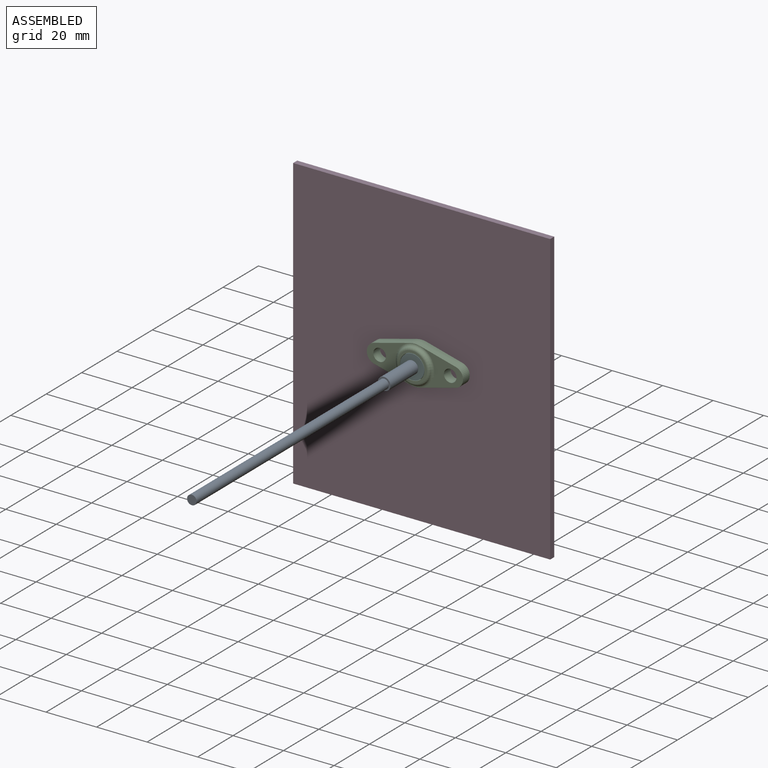
[diagram: assembled view]
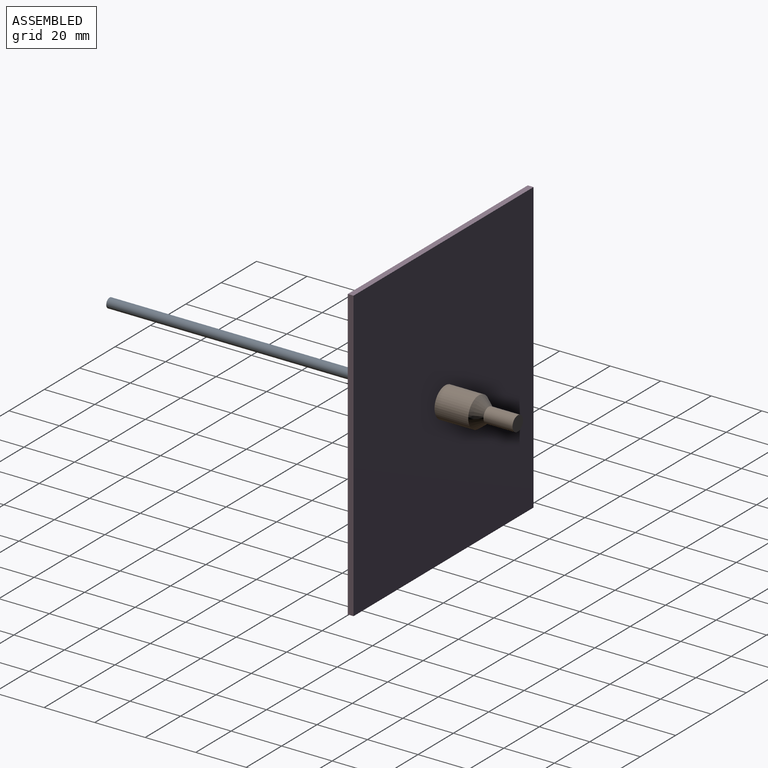
[diagram: assembled view, second angle]
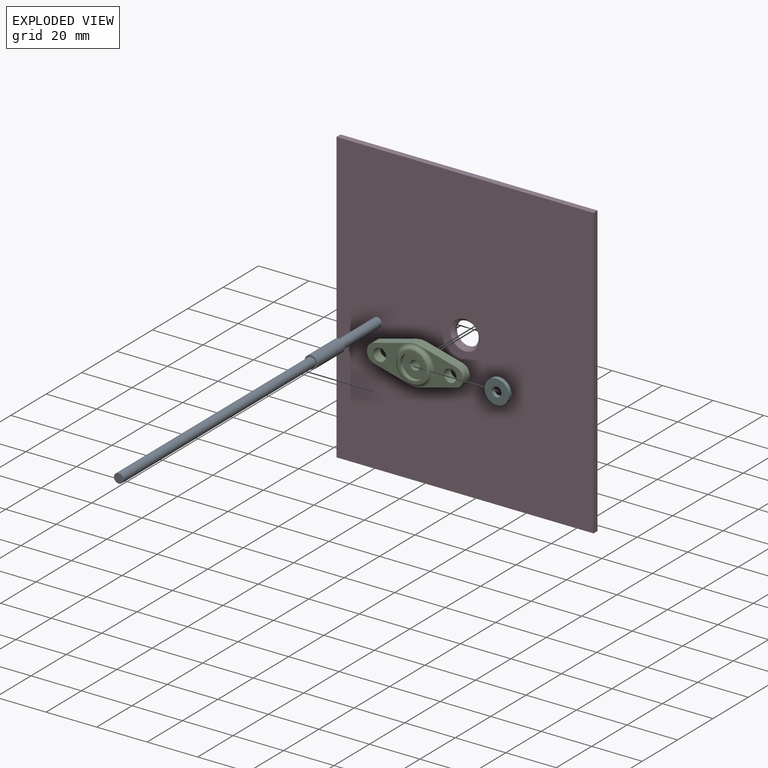
[diagram: exploded view]
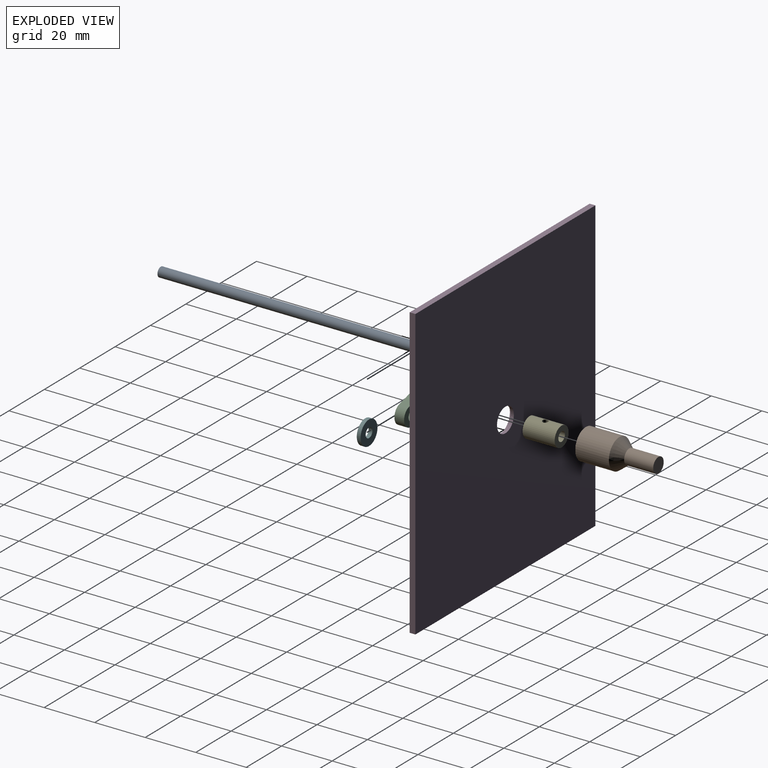
[diagram: exploded view, second angle]
ASSEMBLY  parts=6 mates=4
PART A: 7 faces, bbox 146.2x5x5 mm
  f0: cylinder r=2.52mm len=15.65mm, axis (-1,0,0), area 247.8mm2, adj f1,f2
  f1: plane 5.04x5.04mm, normal (1,0,0), area 8.8mm2, adj f0,f3
  f2: plane 5.04x5.04mm, normal (-1,0,0), area 9.3mm2, adj f0,f5
  f3: cylinder r=1.89mm len=108.71mm, axis (-1,0,0), area 1288.2mm2, adj f1,f4
  f4: plane 3.77x3.77mm, normal (1,0,0), area 11.2mm2, adj f3
  f5: cylinder r=1.84mm len=21.84mm, axis (1,0,0), area 252.7mm2, adj f2,f6
  f6: plane 3.68x3.68mm, normal (-1,0,0), area 10.7mm2, adj f5
PART B: 7 faces, bbox 28.8x12x12 mm
  f0: cylinder r=6.01mm len=13.34mm, axis (-1,0,0), area 503.3mm2, adj f1,f6
  f1: plane 12.01x12.01mm, normal (-1,0,0), area 60.5mm2, adj f0,f2
  f2: cylinder r=4.1mm len=13.34mm, axis (-1,0,0), area 343.7mm2, adj f1,f3
  f3: cone r=4.1mm half-angle=46.4deg, axis (-1,0,0), area 73mm2, adj f2
  f4: plane 5.94x5.94mm, normal (1,0,0), area 27.7mm2, adj f5
  f5: cylinder r=2.97mm len=11.51mm, axis (-1,0,0), area 214.8mm2, adj f4,f6
  f6: cone r=6.01mm half-angle=37.8deg, axis (-1,0,0), area 139.7mm2, adj f0,f5
PART C: 25 faces, bbox 38.1x7.9x18.3 mm
  f0: plane 9.75x9.75mm, normal (0,-1,0), area 63.7mm2, adj f13,f15
  f1: plane 14.27x3.81mm, normal (0.25,0,0.97), area 56.2mm2, adj f9,f10,f19,f24
  f2: plane 14.27x3.81mm, normal (-0.25,0,0.97), area 56.2mm2, adj f9,f10,f19,f21
  f3: plane 3.81x0.11mm, normal (-1,0,0), area 0.4mm2, adj f9,f10,f21,f22
  f4: plane 14.27x3.81mm, normal (-0.25,0,-0.97), area 56.2mm2, adj f9,f10,f20,f22
  f5: plane 14.27x3.81mm, normal (0.25,0,-0.97), area 56.2mm2, adj f9,f10,f20,f23
  f6: cylinder r=2.49mm len=4.98mm, axis (0,-1,0), area 59.6mm2, adj f9,f10
  f7: cylinder r=2.49mm len=4.98mm, axis (0,-1,0), area 59.6mm2, adj f9,f10
  f8: plane 3.81x0.11mm, normal (1,0,0), area 0.4mm2, adj f9,f10,f23,f24
  f9: plane 38.1x15.48mm, normal (0,1,0), area 258.2mm2, adj f1,f2,f3,f4,f5,f6,f7,f8
  f10: plane 38.1x15.48mm, normal (0,-1,0), area 184.8mm2, adj f1,f2,f3,f4,f5,f6,f7,f8
  f11: cylinder r=4.76mm len=9.53mm, axis (0,-1,0), area 38mm2, adj f12,f14
  f12: plane 9.53x9.53mm, normal (0,1,0), area 60.3mm2, adj f11,f13
  f13: cylinder r=1.87mm len=6.35mm, axis (0,-1,0), area 74.5mm2, adj f0,f12
  f14: torus R=6.03mm, axis (0,-1,0), area 65.5mm2, adj f9,f11
  f15: cylinder r=4.87mm len=9.75mm, axis (0,1,0), area 46.7mm2, adj f0,f16
  f16: plane 11.53x11.53mm, normal (0,-1,0), area 29.7mm2, adj f15,f17
  f17: torus R=5.76mm, axis (0,-1,0), area 53.4mm2, adj f16,f18
  f18: torus R=7.73mm, axis (0,-1,0), area 60.2mm2, adj f10,f17
  f19: cylinder r=7.62mm len=3.88mm, axis (0,1,0), area 14.9mm2, adj f1,f2,f9,f10
  f20: cylinder r=7.62mm len=3.88mm, axis (0,1,0), area 14.9mm2, adj f4,f5,f9,f10
  f21: cylinder r=3.81mm len=3.81mm, axis (0,1,0), area 19.1mm2, adj f2,f3,f9,f10
  f22: cylinder r=3.81mm len=3.81mm, axis (0,-1,0), area 19.1mm2, adj f3,f4,f9,f10
  f23: cylinder r=3.81mm len=3.81mm, axis (0,-1,0), area 19.1mm2, adj f5,f8,f9,f10
  f24: cylinder r=3.81mm len=3.81mm, axis (0,1,0), area 19.1mm2, adj f1,f8,f9,f10
PART D: 8 faces, bbox 2.3x114.7x101.8 mm
  f0: plane 114.69x2.29mm, normal (0,0,-1), area 262.2mm2, adj f1,f4,f5,f6
  f1: plane 101.78x2.29mm, normal (0,1,0), area 232.7mm2, adj f0,f2,f5,f6
  f2: plane 114.69x2.29mm, normal (0,0,1), area 262.2mm2, adj f1,f4,f5,f6
  f3: cylinder r=4.76mm len=9.53mm, axis (-1,0,0), area 38mm2, adj f6,f7
  f4: plane 101.78x2.29mm, normal (0,-1,0), area 232.7mm2, adj f0,f2,f5,f6
  f5: plane 114.69x101.78mm, normal (1,0,0), area 11567.9mm2, adj f0,f1,f2,f4,f7
  f6: plane 114.69x101.78mm, normal (-1,0,0), area 11601.5mm2, adj f0,f1,f2,f3,f4
  f7: cone r=4.76mm half-angle=45deg, axis (1,0,0), area 47.6mm2, adj f3,f5
PART E: 5 faces, bbox 12.7x7.9x7.9 mm
  f0: cylinder r=1.85mm len=12.7mm, axis (-1,0,0), area 143.6mm2, adj f2,f3,f4
  f1: cylinder r=3.94mm len=12.7mm, axis (-1,0,0), area 310mm2, adj f2,f3,f4
  f2: plane 7.87x7.87mm, normal (1,0,0), area 37.9mm2, adj f0,f1
  f3: plane 7.87x7.87mm, normal (-1,0,0), area 37.9mm2, adj f0,f1
  f4: cylinder r=1.14mm len=2.48mm, axis (0,-1,0), area 15.7mm2, adj f0,f1
PART F: 4 faces, bbox 9.5x1.5x9.5 mm
  f0: cylinder r=4.76mm len=9.53mm, axis (0,1,0), area 45.6mm2, adj f1,f2
  f1: plane 9.53x9.53mm, normal (0,-1,0), area 59.9mm2, adj f0,f3
  f2: plane 9.53x9.53mm, normal (0,1,0), area 59.9mm2, adj f0,f3
  f3: cylinder r=1.91mm len=3.81mm, axis (0,-1,0), area 18.2mm2, adj f1,f2
PLACE A rot(axis=(-0.58,0.58,-0.58),120deg) t=(0,-1.78,0)mm
PLACE B rot(axis=(0.71,0.71,0),180deg) t=(0,6.73,0)mm
PLACE C at identity fixed
PLACE D rot(axis=(0.58,-0.58,-0.58),120deg) t=(0,6.1,0)mm
PLACE E rot(axis=(0.58,-0.58,-0.58),120deg) t=(0,13.08,0)mm
PLACE F at identity fixed
MATE revolute E.f0 <-> C.f13  axis (0,-1,0) through (0,6.73,0)mm
MATE fastened B.f0 <-> E.f1  axis (0,-1,0) through (0,6.73,0)mm
MATE revolute A.f5 <-> F.f3  axis (0,-1,0) through (0,-1.78,0)mm
MATE fastened C.f11 <-> D.f3  axis (0,1,0) through (0,3.81,0)mm
